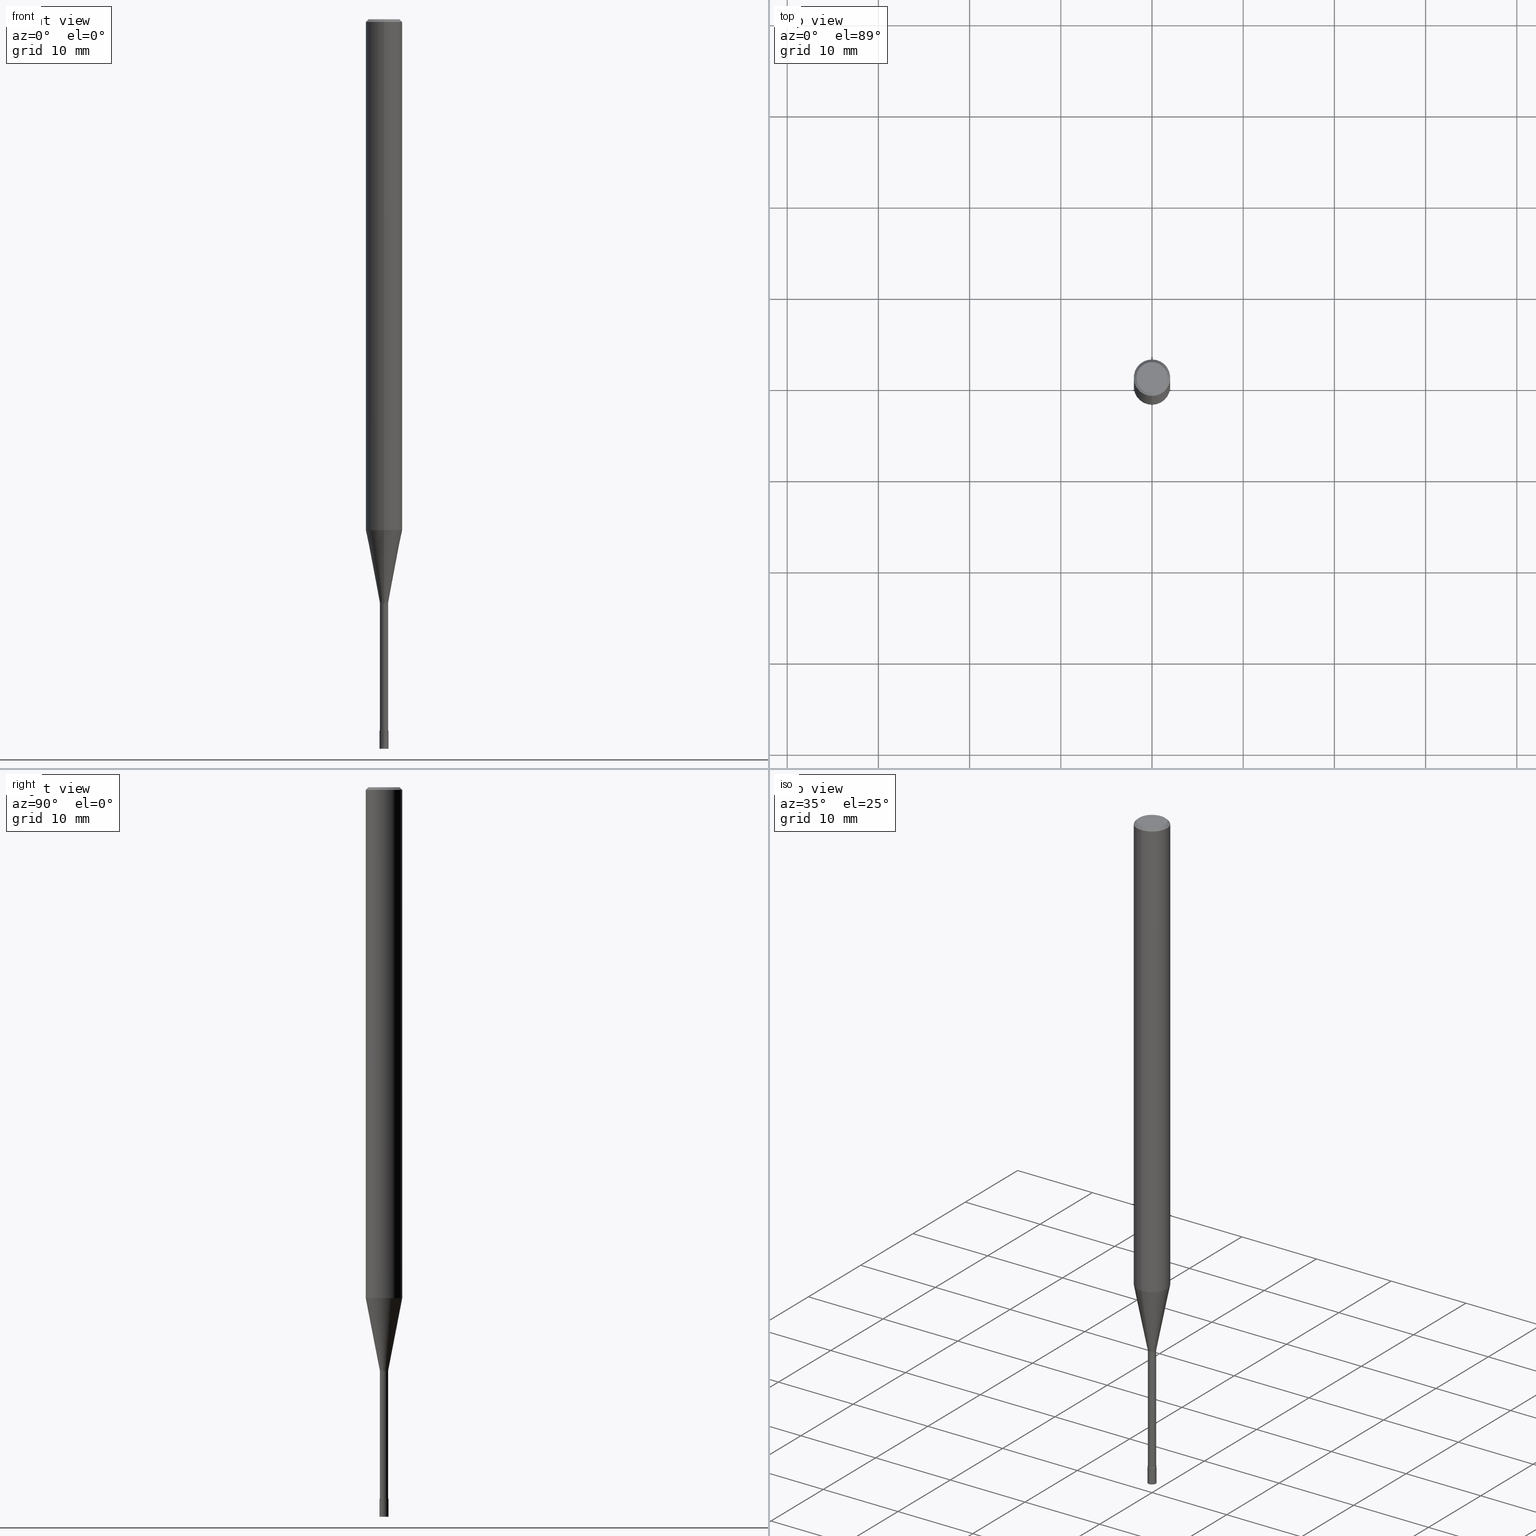
[diagram: canonical four-view strip — front | top / right | iso, engineering-drawing reading convention]
A machine part, canonical four-view strip (front | top / right | iso — engineering-drawing reading convention). The complete STEP part file that produces these views, byte-faithful:
ISO-10303-21;
HEADER;
FILE_DESCRIPTION(('no description'),'unknown implementation level');
FILE_NAME('CPRL2010-16-Huellk.stp','  ',('CIMSOURCE GmbH'),('CADClick - KiM GmbH - www.kimweb.de'),'unknown preprocess','ACIS','unknown authorization');
FILE_SCHEMA(('automotive_design'));
ENDSEC;
DATA;
#1=MECHANICAL_DESIGN_GEOMETRIC_PRESENTATION_REPRESENTATION(' ',(#14,#15,#16,#17,#18,#19,#20,#21,#22,#23,#24,#25,#26,#27,#28,#29,#30,#31,#32,#33,#34,#35,#36,#37,#38,#39,#40,#41,#42,#43,#44,#45,#46,#47,#48,#49,#50,#51,#52,#53,#54,#55,#56,#57,#58,#59,#60,#61,#62,#63,#64,#65,#66,#67,#68,#69,#70,#71,#72),#10);
#2=PRODUCT_DEFINITION_CONTEXT('',#73,'design');
#3=APPLICATION_PROTOCOL_DEFINITION('INTERNATIONAL STANDARD','automotive_design',1994,#73);
#4=PRODUCT_CATEGORY_RELATIONSHIP('NONE','NONE',#74,#75);
#5=SHAPE_DEFINITION_REPRESENTATION(#76,#77);
#6=PRODUCT_DEFINITION_CONTEXT('',#78,'design');
#7=APPLICATION_PROTOCOL_DEFINITION('INTERNATIONAL STANDARD','automotive_design',1994,#78);
#8=PRODUCT_CATEGORY_RELATIONSHIP('NONE','NONE',#79,#80);
#9=SHAPE_DEFINITION_REPRESENTATION(#81,#82);
#10= (GEOMETRIC_REPRESENTATION_CONTEXT(3)GLOBAL_UNCERTAINTY_ASSIGNED_CONTEXT((#85))GLOBAL_UNIT_ASSIGNED_CONTEXT((#87,#88,#89))REPRESENTATION_CONTEXT('NONE','WORKSPACE'));
#14=STYLED_ITEM('',(#91),#92);
#15=STYLED_ITEM('',(#93),#94);
#16=STYLED_ITEM('',(#95),#96);
#17=STYLED_ITEM('',(#97),#98);
#18=STYLED_ITEM('',(#99),#100);
#19=STYLED_ITEM('',(#101),#102);
#20=STYLED_ITEM('',(#103),#104);
#21=STYLED_ITEM('',(#105),#106);
#22=STYLED_ITEM('',(#107),#108);
#23=STYLED_ITEM('',(#109),#110);
#24=STYLED_ITEM('',(#111),#112);
#25=STYLED_ITEM('',(#113),#114);
#26=STYLED_ITEM('',(#115),#116);
#27=STYLED_ITEM('',(#117),#118);
#28=STYLED_ITEM('',(#119),#120);
#29=STYLED_ITEM('',(#121),#122);
#30=STYLED_ITEM('',(#123),#124);
#31=STYLED_ITEM('',(#125),#126);
#32=STYLED_ITEM('',(#127),#128);
#33=STYLED_ITEM('',(#129),#130);
#34=STYLED_ITEM('',(#131),#132);
#35=STYLED_ITEM('',(#133),#134);
#36=STYLED_ITEM('',(#135),#136);
#37=STYLED_ITEM('',(#137),#138);
#38=STYLED_ITEM('',(#139),#140);
#39=STYLED_ITEM('',(#141),#142);
#40=STYLED_ITEM('',(#143),#144);
#41=STYLED_ITEM('',(#145),#146);
#42=STYLED_ITEM('',(#147),#148);
#43=STYLED_ITEM('',(#149),#150);
#44=STYLED_ITEM('',(#151),#152);
#45=STYLED_ITEM('',(#153),#154);
#46=STYLED_ITEM('',(#155),#156);
#47=STYLED_ITEM('',(#157),#158);
#48=STYLED_ITEM('',(#159),#160);
#49=STYLED_ITEM('',(#161),#162);
#50=STYLED_ITEM('',(#163),#164);
#51=STYLED_ITEM('',(#165),#166);
#52=STYLED_ITEM('',(#167),#168);
#53=STYLED_ITEM('',(#169),#170);
#54=STYLED_ITEM('',(#171),#172);
#55=STYLED_ITEM('',(#173),#174);
#56=STYLED_ITEM('',(#175),#176);
#57=STYLED_ITEM('',(#177),#178);
#58=STYLED_ITEM('',(#179),#180);
#59=STYLED_ITEM('',(#181),#182);
#60=STYLED_ITEM('',(#183),#184);
#61=STYLED_ITEM('',(#185),#186);
#62=STYLED_ITEM('',(#187),#188);
#63=STYLED_ITEM('',(#189),#190);
#64=STYLED_ITEM('',(#191),#192);
#65=STYLED_ITEM('',(#193),#194);
#66=STYLED_ITEM('',(#195),#196);
#67=STYLED_ITEM('',(#197),#198);
#68=STYLED_ITEM('',(#199),#200);
#69=STYLED_ITEM('',(#201),#202);
#70=STYLED_ITEM('',(#203),#204);
#71=STYLED_ITEM('',(#205),#206);
#72=STYLED_ITEM('',(#207),#208);
#73=APPLICATION_CONTEXT(' ');
#74=PRODUCT_CATEGORY('part','NONE');
#75=PRODUCT_RELATED_PRODUCT_CATEGORY('detail',' ',(#209));
#76=PRODUCT_DEFINITION_SHAPE('NONE','NONE',#210);
#77=ADVANCED_BREP_SHAPE_REPRESENTATION('1',(#188,#211),#10);
#78=APPLICATION_CONTEXT(' ');
#79=PRODUCT_CATEGORY('part','NONE');
#80=PRODUCT_RELATED_PRODUCT_CATEGORY('detail',' ',(#212));
#81=PRODUCT_DEFINITION_SHAPE('NONE','NONE',#213);
#82=ADVANCED_BREP_SHAPE_REPRESENTATION('2',(#190,#214),#10);
#85=UNCERTAINTY_MEASURE_WITH_UNIT(LENGTH_MEASURE(1.0E-006),#87,'','');
#87= (CONVERSION_BASED_UNIT('MILLIMETRE',#217)LENGTH_UNIT()NAMED_UNIT(#220));
#88= (NAMED_UNIT(#222)PLANE_ANGLE_UNIT()SI_UNIT($,.RADIAN.));
#89= (NAMED_UNIT(#222)SOLID_ANGLE_UNIT()SI_UNIT($,.STERADIAN.));
#91=PRESENTATION_STYLE_ASSIGNMENT((#228));
#92=ADVANCED_FACE('',(#229),#230,.T.);
#93=PRESENTATION_STYLE_ASSIGNMENT((#231));
#94=ADVANCED_FACE('',(#232),#233,.T.);
#95=PRESENTATION_STYLE_ASSIGNMENT((#234));
#96=VERTEX_POINT('',#235);
#97=PRESENTATION_STYLE_ASSIGNMENT((#236));
#98=VERTEX_POINT('',#237);
#99=PRESENTATION_STYLE_ASSIGNMENT((#238));
#100=ADVANCED_FACE('',(#239),#240,.T.);
#101=PRESENTATION_STYLE_ASSIGNMENT((#241));
#102=EDGE_CURVE('',#134,#174,#242,.T.);
#103=PRESENTATION_STYLE_ASSIGNMENT((#243));
#104=EDGE_CURVE('',#198,#166,#244,.T.);
#105=PRESENTATION_STYLE_ASSIGNMENT((#245));
#106=EDGE_CURVE('',#130,#136,#246,.T.);
#107=PRESENTATION_STYLE_ASSIGNMENT((#247));
#108=EDGE_CURVE('',#136,#128,#248,.T.);
#109=PRESENTATION_STYLE_ASSIGNMENT((#249));
#110=EDGE_CURVE('',#96,#136,#250,.T.);
#111=PRESENTATION_STYLE_ASSIGNMENT((#251));
#112=VERTEX_POINT('',#252);
#113=PRESENTATION_STYLE_ASSIGNMENT((#253));
#114=EDGE_CURVE('',#174,#206,#254,.T.);
#115=PRESENTATION_STYLE_ASSIGNMENT((#255));
#116=ADVANCED_FACE('',(#256),#257,.T.);
#117=PRESENTATION_STYLE_ASSIGNMENT((#258));
#118=VERTEX_POINT('',#259);
#119=PRESENTATION_STYLE_ASSIGNMENT((#260));
#120=EDGE_CURVE('',#134,#178,#261,.T.);
#121=PRESENTATION_STYLE_ASSIGNMENT((#262));
#122=EDGE_CURVE('',#118,#134,#263,.T.);
#123=PRESENTATION_STYLE_ASSIGNMENT((#264));
#124=VERTEX_POINT('',#265);
#125=PRESENTATION_STYLE_ASSIGNMENT((#266));
#126=EDGE_CURVE('',#112,#198,#267,.T.);
#127=PRESENTATION_STYLE_ASSIGNMENT((#268));
#128=VERTEX_POINT('',#269);
#129=PRESENTATION_STYLE_ASSIGNMENT((#270));
#130=VERTEX_POINT('',#271);
#131=PRESENTATION_STYLE_ASSIGNMENT((#272));
#132=EDGE_CURVE('',#206,#174,#273,.T.);
#133=PRESENTATION_STYLE_ASSIGNMENT((#274));
#134=VERTEX_POINT('',#275);
#135=PRESENTATION_STYLE_ASSIGNMENT((#276));
#136=VERTEX_POINT('',#277);
#137=PRESENTATION_STYLE_ASSIGNMENT((#278));
#138=EDGE_CURVE('',#130,#98,#279,.T.);
#139=PRESENTATION_STYLE_ASSIGNMENT((#280));
#140=EDGE_CURVE('',#178,#134,#281,.T.);
#141=PRESENTATION_STYLE_ASSIGNMENT((#282));
#142=EDGE_CURVE('',#136,#96,#283,.T.);
#143=PRESENTATION_STYLE_ASSIGNMENT((#284));
#144=EDGE_CURVE('',#178,#124,#285,.T.);
#145=PRESENTATION_STYLE_ASSIGNMENT((#286));
#146=VERTEX_POINT('',#287);
#147=PRESENTATION_STYLE_ASSIGNMENT((#288));
#148=EDGE_CURVE('',#198,#112,#289,.T.);
#149=PRESENTATION_STYLE_ASSIGNMENT((#290));
#150=ADVANCED_FACE('',(#291),#292,.T.);
#151=PRESENTATION_STYLE_ASSIGNMENT((#293));
#152=EDGE_CURVE('',#146,#112,#294,.T.);
#153=PRESENTATION_STYLE_ASSIGNMENT((#295));
#154=ADVANCED_FACE('',(#296),#297,.T.);
#155=PRESENTATION_STYLE_ASSIGNMENT((#298));
#156=ADVANCED_FACE('',(#299),#300,.T.);
#157=PRESENTATION_STYLE_ASSIGNMENT((#301));
#158=ADVANCED_FACE('',(#302),#303,.T.);
#159=PRESENTATION_STYLE_ASSIGNMENT((#304));
#160=ADVANCED_FACE('',(#305),#306,.T.);
#161=PRESENTATION_STYLE_ASSIGNMENT((#307));
#162=ADVANCED_FACE('',(#308),#309,.T.);
#163=PRESENTATION_STYLE_ASSIGNMENT((#310));
#164=ADVANCED_FACE('',(#311),#312,.T.);
#165=PRESENTATION_STYLE_ASSIGNMENT((#313));
#166=VERTEX_POINT('',#314);
#167=PRESENTATION_STYLE_ASSIGNMENT((#315));
#168=EDGE_CURVE('',#98,#130,#316,.T.);
#169=PRESENTATION_STYLE_ASSIGNMENT((#317));
#170=EDGE_CURVE('',#206,#178,#318,.T.);
#171=PRESENTATION_STYLE_ASSIGNMENT((#319));
#172=VERTEX_POINT('',#320);
#173=PRESENTATION_STYLE_ASSIGNMENT((#321));
#174=VERTEX_POINT('',#322);
#175=PRESENTATION_STYLE_ASSIGNMENT((#323));
#176=EDGE_CURVE('',#166,#146,#324,.T.);
#177=PRESENTATION_STYLE_ASSIGNMENT((#325));
#178=VERTEX_POINT('',#326);
#179=PRESENTATION_STYLE_ASSIGNMENT((#327));
#180=ADVANCED_FACE('',(#328),#329,.T.);
#181=PRESENTATION_STYLE_ASSIGNMENT((#330));
#182=EDGE_CURVE('',#172,#128,#331,.T.);
#183=PRESENTATION_STYLE_ASSIGNMENT((#332));
#184=ADVANCED_FACE('',(#333,#334),#335,.T.);
#185=PRESENTATION_STYLE_ASSIGNMENT((#336));
#186=EDGE_CURVE('',#128,#172,#337,.T.);
#187=PRESENTATION_STYLE_ASSIGNMENT((#338));
#188=MANIFOLD_SOLID_BREP('1',#339);
#189=PRESENTATION_STYLE_ASSIGNMENT((#340));
#190=MANIFOLD_SOLID_BREP('2',#341);
#191=PRESENTATION_STYLE_ASSIGNMENT((#342));
#192=ADVANCED_FACE('',(#343),#344,.T.);
#193=PRESENTATION_STYLE_ASSIGNMENT((#345));
#194=EDGE_CURVE('',#172,#96,#346,.T.);
#195=PRESENTATION_STYLE_ASSIGNMENT((#347));
#196=ADVANCED_FACE('',(#348),#349,.T.);
#197=PRESENTATION_STYLE_ASSIGNMENT((#350));
#198=VERTEX_POINT('',#351);
#199=PRESENTATION_STYLE_ASSIGNMENT((#352));
#200=EDGE_CURVE('',#118,#124,#353,.T.);
#201=PRESENTATION_STYLE_ASSIGNMENT((#354));
#202=EDGE_CURVE('',#124,#118,#355,.T.);
#203=PRESENTATION_STYLE_ASSIGNMENT((#356));
#204=EDGE_CURVE('',#146,#166,#357,.T.);
#205=PRESENTATION_STYLE_ASSIGNMENT((#358));
#206=VERTEX_POINT('',#359);
#207=PRESENTATION_STYLE_ASSIGNMENT((#360));
#208=EDGE_CURVE('',#96,#98,#361,.T.);
#209=PRODUCT('1','1','PART-1-DESC',(#362));
#210=PRODUCT_DEFINITION('NONE','NONE',#363,#2);
#211=AXIS2_PLACEMENT_3D('',#364,#365,#366);
#212=PRODUCT('2','2','PART-2-DESC',(#367));
#213=PRODUCT_DEFINITION('NONE','NONE',#368,#6);
#214=AXIS2_PLACEMENT_3D('',#369,#370,#371);
#217=LENGTH_MEASURE_WITH_UNIT(LENGTH_MEASURE(1.0),#372);
#220=DIMENSIONAL_EXPONENTS(1.0,0.0,0.0,0.0,0.0,0.0,0.0);
#222=DIMENSIONAL_EXPONENTS(0.0,0.0,0.0,0.0,0.0,0.0,0.0);
#228=SURFACE_STYLE_USAGE(.BOTH.,#373);
#229=FACE_OUTER_BOUND('',#374,.T.);
#230=PLANE('',#375);
#231=SURFACE_STYLE_USAGE(.BOTH.,#376);
#232=FACE_OUTER_BOUND('',#377,.T.);
#233=CONICAL_SURFACE('',#378,0.49995,4.99999999583278E-005);
#234=POINT_STYLE(' ',#379,POSITIVE_LENGTH_MEASURE(1.0E-006),#380);
#235=CARTESIAN_POINT('',(2.44921270764475E-016,-2.0,-0.299999999999997));
#236=POINT_STYLE(' ',#381,POSITIVE_LENGTH_MEASURE(1.0E-006),#382);
#237=CARTESIAN_POINT('',(2.08183080149804E-016,-1.7,0.0));
#238=SURFACE_STYLE_USAGE(.BOTH.,#383);
#239=FACE_OUTER_BOUND('',#384,.T.);
#240=CONICAL_SURFACE('',#385,1.22495,0.191987597119561);
#241=CURVE_STYLE('',#386,POSITIVE_LENGTH_MEASURE(1.0E-006),#387);
#242=LINE('',#388,#389);
#243=CURVE_STYLE('',#390,POSITIVE_LENGTH_MEASURE(1.0E-006),#391);
#244=LINE('',#392,#393);
#245=CURVE_STYLE('',#394,POSITIVE_LENGTH_MEASURE(1.0E-006),#395);
#246=LINE('',#396,#397);
#247=CURVE_STYLE('',#398,POSITIVE_LENGTH_MEASURE(1.0E-006),#399);
#248=LINE('',#400,#401);
#249=CURVE_STYLE('',#402,POSITIVE_LENGTH_MEASURE(1.0E-006),#403);
#250=CIRCLE('',#404,2.0);
#251=POINT_STYLE(' ',#405,POSITIVE_LENGTH_MEASURE(1.0E-006),#406);
#252=CARTESIAN_POINT('',(0.0,0.5,-80.0));
#253=CURVE_STYLE('',#407,POSITIVE_LENGTH_MEASURE(1.0E-006),#408);
#254=CIRCLE('',#409,1.99995);
#255=SURFACE_STYLE_USAGE(.BOTH.,#410);
#256=FACE_OUTER_BOUND('',#411,.T.);
#257=CYLINDRICAL_SURFACE('',#412,0.44995);
#258=POINT_STYLE(' ',#413,POSITIVE_LENGTH_MEASURE(1.0E-006),#414);
#259=CARTESIAN_POINT('',(5.51011628902379E-017,-0.44995,-78.0));
#260=CURVE_STYLE('',#415,POSITIVE_LENGTH_MEASURE(1.0E-006),#416);
#261=CIRCLE('',#417,0.44995);
#262=CURVE_STYLE('',#418,POSITIVE_LENGTH_MEASURE(1.0E-006),#419);
#263=LINE('',#420,#421);
#264=POINT_STYLE(' ',#422,POSITIVE_LENGTH_MEASURE(1.0E-006),#423);
#265=CARTESIAN_POINT('',(0.0,0.44995,-78.0));
#266=CURVE_STYLE('',#424,POSITIVE_LENGTH_MEASURE(1.0E-006),#425);
#267=CIRCLE('',#426,0.5);
#268=POINT_STYLE(' ',#427,POSITIVE_LENGTH_MEASURE(1.0E-006),#428);
#269=CARTESIAN_POINT('',(0.0,2.0,-56.026));
#270=POINT_STYLE(' ',#429,POSITIVE_LENGTH_MEASURE(1.0E-006),#430);
#271=CARTESIAN_POINT('',(0.0,1.7,0.0));
#272=CURVE_STYLE('',#431,POSITIVE_LENGTH_MEASURE(1.0E-006),#432);
#273=CIRCLE('',#433,1.99995);
#274=POINT_STYLE(' ',#434,POSITIVE_LENGTH_MEASURE(1.0E-006),#435);
#275=CARTESIAN_POINT('',(5.51011628902379E-017,-0.44995,-64.0));
#276=POINT_STYLE(' ',#436,POSITIVE_LENGTH_MEASURE(1.0E-006),#437);
#277=CARTESIAN_POINT('',(0.0,2.0,-0.299999999999997));
#278=CURVE_STYLE('',#438,POSITIVE_LENGTH_MEASURE(1.0E-006),#439);
#279=CIRCLE('',#440,1.7);
#280=CURVE_STYLE('',#441,POSITIVE_LENGTH_MEASURE(1.0E-006),#442);
#281=CIRCLE('',#443,0.44995);
#282=CURVE_STYLE('',#444,POSITIVE_LENGTH_MEASURE(1.0E-006),#445);
#283=CIRCLE('',#446,2.0);
#284=CURVE_STYLE('',#447,POSITIVE_LENGTH_MEASURE(1.0E-006),#448);
#285=LINE('',#449,#450);
#286=POINT_STYLE(' ',#451,POSITIVE_LENGTH_MEASURE(1.0E-006),#452);
#287=CARTESIAN_POINT('',(0.0,0.4999,-78.0));
#288=CURVE_STYLE('',#453,POSITIVE_LENGTH_MEASURE(1.0E-006),#454);
#289=CIRCLE('',#455,0.5);
#290=SURFACE_STYLE_USAGE(.BOTH.,#456);
#291=FACE_OUTER_BOUND('',#457,.T.);
#292=CONICAL_SURFACE('',#458,1.85,0.785398163397453);
#293=CURVE_STYLE('',#459,POSITIVE_LENGTH_MEASURE(1.0E-006),#460);
#294=LINE('',#461,#462);
#295=SURFACE_STYLE_USAGE(.BOTH.,#463);
#296=FACE_OUTER_BOUND('',#464,.T.);
#297=PLANE('',#465);
#298=SURFACE_STYLE_USAGE(.BOTH.,#466);
#299=FACE_OUTER_BOUND('',#467,.T.);
#300=PLANE('',#468);
#301=SURFACE_STYLE_USAGE(.BOTH.,#469);
#302=FACE_OUTER_BOUND('',#470,.T.);
#303=CYLINDRICAL_SURFACE('',#471,2.0);
#304=SURFACE_STYLE_USAGE(.BOTH.,#472);
#305=FACE_OUTER_BOUND('',#473,.T.);
#306=PLANE('',#474);
#307=SURFACE_STYLE_USAGE(.BOTH.,#475);
#308=FACE_OUTER_BOUND('',#476,.T.);
#309=CONICAL_SURFACE('',#477,0.49995,4.99999999583278E-005);
#310=SURFACE_STYLE_USAGE(.BOTH.,#478);
#311=FACE_OUTER_BOUND('',#479,.T.);
#312=CONICAL_SURFACE('',#480,1.22495,0.191987597119561);
#313=POINT_STYLE(' ',#481,POSITIVE_LENGTH_MEASURE(1.0E-006),#482);
#314=CARTESIAN_POINT('',(6.12180716275807E-017,-0.4999,-78.0));
#315=CURVE_STYLE('',#483,POSITIVE_LENGTH_MEASURE(1.0E-006),#484);
#316=CIRCLE('',#485,1.7);
#317=CURVE_STYLE('',#486,POSITIVE_LENGTH_MEASURE(1.0E-006),#487);
#318=LINE('',#488,#489);
#319=POINT_STYLE(' ',#490,POSITIVE_LENGTH_MEASURE(1.0E-006),#491);
#320=CARTESIAN_POINT('',(2.44921270764475E-016,-2.0,-56.026));
#321=POINT_STYLE(' ',#492,POSITIVE_LENGTH_MEASURE(1.0E-006),#493);
#322=CARTESIAN_POINT('',(2.44915147732706E-016,-1.99995,-56.026));
#323=CURVE_STYLE('',#494,POSITIVE_LENGTH_MEASURE(1.0E-006),#495);
#324=CIRCLE('',#496,0.4999);
#325=POINT_STYLE(' ',#497,POSITIVE_LENGTH_MEASURE(1.0E-006),#498);
#326=CARTESIAN_POINT('',(0.0,0.44995,-64.0));
#327=SURFACE_STYLE_USAGE(.BOTH.,#499);
#328=FACE_OUTER_BOUND('',#500,.T.);
#329=CYLINDRICAL_SURFACE('',#501,0.44995);
#330=CURVE_STYLE('',#502,POSITIVE_LENGTH_MEASURE(1.0E-006),#503);
#331=CIRCLE('',#504,2.0);
#332=SURFACE_STYLE_USAGE(.BOTH.,#505);
#333=FACE_OUTER_BOUND('',#506,.T.);
#334=FACE_BOUND('',#507,.T.);
#335=PLANE('',#508);
#336=CURVE_STYLE('',#509,POSITIVE_LENGTH_MEASURE(1.0E-006),#510);
#337=CIRCLE('',#511,2.0);
#338=SURFACE_STYLE_USAGE(.BOTH.,#512);
#339=CLOSED_SHELL('',(#180,#164,#158,#150,#184,#92,#192,#196,#100,#116,#156));
#340=SURFACE_STYLE_USAGE(.BOTH.,#513);
#341=CLOSED_SHELL('',(#162,#154,#94,#160));
#342=SURFACE_STYLE_USAGE(.BOTH.,#514);
#343=FACE_OUTER_BOUND('',#515,.T.);
#344=CONICAL_SURFACE('',#516,1.85,0.785398163397453);
#345=CURVE_STYLE('',#517,POSITIVE_LENGTH_MEASURE(1.0E-006),#518);
#346=LINE('',#519,#520);
#347=SURFACE_STYLE_USAGE(.BOTH.,#521);
#348=FACE_OUTER_BOUND('',#522,.T.);
#349=CYLINDRICAL_SURFACE('',#523,2.0);
#350=POINT_STYLE(' ',#524,POSITIVE_LENGTH_MEASURE(1.0E-006),#525);
#351=CARTESIAN_POINT('',(6.12303176911189E-017,-0.5,-80.0));
#352=CURVE_STYLE('',#526,POSITIVE_LENGTH_MEASURE(1.0E-006),#527);
#353=CIRCLE('',#528,0.44995);
#354=CURVE_STYLE('',#529,POSITIVE_LENGTH_MEASURE(1.0E-006),#530);
#355=CIRCLE('',#531,0.44995);
#356=CURVE_STYLE('',#532,POSITIVE_LENGTH_MEASURE(1.0E-006),#533);
#357=CIRCLE('',#534,0.4999);
#358=POINT_STYLE(' ',#535,POSITIVE_LENGTH_MEASURE(1.0E-006),#536);
#359=CARTESIAN_POINT('',(0.0,1.99995,-56.026));
#360=CURVE_STYLE('',#537,POSITIVE_LENGTH_MEASURE(1.0E-006),#538);
#361=LINE('',#539,#540);
#362=PRODUCT_CONTEXT('',#73,'mechanical');
#363=PRODUCT_DEFINITION_FORMATION_WITH_SPECIFIED_SOURCE(' ','NONE',#209,.NOT_KNOWN.);
#364=CARTESIAN_POINT('',(0.0,0.0,0.0));
#365=DIRECTION('',(0.0,0.0,1.0));
#366=DIRECTION('',(1.0,0.0,0.0));
#367=PRODUCT_CONTEXT('',#78,'mechanical');
#368=PRODUCT_DEFINITION_FORMATION_WITH_SPECIFIED_SOURCE(' ','NONE',#212,.NOT_KNOWN.);
#369=CARTESIAN_POINT('',(0.0,0.0,0.0));
#370=DIRECTION('',(0.0,0.0,1.0));
#371=DIRECTION('',(1.0,0.0,0.0));
#372= (NAMED_UNIT(#220)LENGTH_UNIT()SI_UNIT(.MILLI.,.METRE.));
#373=SURFACE_SIDE_STYLE('',(#542));
#374=EDGE_LOOP('',(#543,#544));
#375=AXIS2_PLACEMENT_3D('',#545,#546,#547);
#376=SURFACE_SIDE_STYLE('',(#548));
#377=EDGE_LOOP('',(#549,#550,#551,#552));
#378=AXIS2_PLACEMENT_3D('',#553,#554,#555);
#379=PRE_DEFINED_MARKER('');
#380=COLOUR_RGB('',0.498039215803146,0.498039215803146,0.498039215803146);
#381=PRE_DEFINED_MARKER('');
#382=COLOUR_RGB('',0.498039215803146,0.498039215803146,0.498039215803146);
#383=SURFACE_SIDE_STYLE('',(#556));
#384=EDGE_LOOP('',(#557,#558,#559,#560));
#385=AXIS2_PLACEMENT_3D('',#561,#562,#563);
#386=DRAUGHTING_PRE_DEFINED_CURVE_FONT('continuous');
#387=COLOUR_RGB('',0.498039215803146,0.498039215803146,0.498039215803146);
#388=CARTESIAN_POINT('',(1.50008155311472E-016,-1.22495,-60.013));
#389=VECTOR('',#564,1.0);
#390=DRAUGHTING_PRE_DEFINED_CURVE_FONT('continuous');
#391=COLOUR_RGB('',0.800000011920929,0.800000011920929,0.800000011920929);
#392=CARTESIAN_POINT('',(6.12241946593498E-017,-0.49995,-79.0));
#393=VECTOR('',#565,1.0);
#394=DRAUGHTING_PRE_DEFINED_CURVE_FONT('continuous');
#395=COLOUR_RGB('',0.498039215803146,0.498039215803146,0.498039215803146);
#396=CARTESIAN_POINT('',(-2.2655217545714E-016,1.85,-0.149999999999999));
#397=VECTOR('',#566,1.0);
#398=DRAUGHTING_PRE_DEFINED_CURVE_FONT('continuous');
#399=COLOUR_RGB('',0.498039215803146,0.498039215803146,0.498039215803146);
#400=CARTESIAN_POINT('',(-2.44921270764475E-016,2.0,-28.163));
#401=VECTOR('',#567,1.0);
#402=DRAUGHTING_PRE_DEFINED_CURVE_FONT('continuous');
#403=COLOUR_RGB('',0.498039215803146,0.498039215803146,0.498039215803146);
#404=AXIS2_PLACEMENT_3D('',#568,#569,#570);
#405=PRE_DEFINED_MARKER('');
#406=COLOUR_RGB('',0.800000011920929,0.800000011920929,0.800000011920929);
#407=DRAUGHTING_PRE_DEFINED_CURVE_FONT('continuous');
#408=COLOUR_RGB('',0.498039215803146,0.498039215803146,0.498039215803146);
#409=AXIS2_PLACEMENT_3D('',#571,#572,#573);
#410=SURFACE_SIDE_STYLE('',(#574));
#411=EDGE_LOOP('',(#575,#576,#577,#578));
#412=AXIS2_PLACEMENT_3D('',#579,#580,#581);
#413=PRE_DEFINED_MARKER('');
#414=COLOUR_RGB('',0.498039215803146,0.498039215803146,0.498039215803146);
#415=DRAUGHTING_PRE_DEFINED_CURVE_FONT('continuous');
#416=COLOUR_RGB('',0.498039215803146,0.498039215803146,0.498039215803146);
#417=AXIS2_PLACEMENT_3D('',#582,#583,#584);
#418=DRAUGHTING_PRE_DEFINED_CURVE_FONT('continuous');
#419=COLOUR_RGB('',0.498039215803146,0.498039215803146,0.498039215803146);
#420=CARTESIAN_POINT('',(5.51011628902379E-017,-0.44995,-71.0));
#421=VECTOR('',#585,1.0);
#422=PRE_DEFINED_MARKER('');
#423=COLOUR_RGB('',0.498039215803146,0.498039215803146,0.498039215803146);
#424=DRAUGHTING_PRE_DEFINED_CURVE_FONT('continuous');
#425=COLOUR_RGB('',0.800000011920929,0.800000011920929,0.800000011920929);
#426=AXIS2_PLACEMENT_3D('',#586,#587,#588);
#427=PRE_DEFINED_MARKER('');
#428=COLOUR_RGB('',0.498039215803146,0.498039215803146,0.498039215803146);
#429=PRE_DEFINED_MARKER('');
#430=COLOUR_RGB('',0.498039215803146,0.498039215803146,0.498039215803146);
#431=DRAUGHTING_PRE_DEFINED_CURVE_FONT('continuous');
#432=COLOUR_RGB('',0.498039215803146,0.498039215803146,0.498039215803146);
#433=AXIS2_PLACEMENT_3D('',#589,#590,#591);
#434=PRE_DEFINED_MARKER('');
#435=COLOUR_RGB('',0.498039215803146,0.498039215803146,0.498039215803146);
#436=PRE_DEFINED_MARKER('');
#437=COLOUR_RGB('',0.498039215803146,0.498039215803146,0.498039215803146);
#438=DRAUGHTING_PRE_DEFINED_CURVE_FONT('continuous');
#439=COLOUR_RGB('',0.498039215803146,0.498039215803146,0.498039215803146);
#440=AXIS2_PLACEMENT_3D('',#592,#593,#594);
#441=DRAUGHTING_PRE_DEFINED_CURVE_FONT('continuous');
#442=COLOUR_RGB('',0.498039215803146,0.498039215803146,0.498039215803146);
#443=AXIS2_PLACEMENT_3D('',#595,#596,#597);
#444=DRAUGHTING_PRE_DEFINED_CURVE_FONT('continuous');
#445=COLOUR_RGB('',0.498039215803146,0.498039215803146,0.498039215803146);
#446=AXIS2_PLACEMENT_3D('',#598,#599,#600);
#447=DRAUGHTING_PRE_DEFINED_CURVE_FONT('continuous');
#448=COLOUR_RGB('',0.498039215803146,0.498039215803146,0.498039215803146);
#449=CARTESIAN_POINT('',(-5.51011628902379E-017,0.44995,-71.0));
#450=VECTOR('',#601,1.0);
#451=PRE_DEFINED_MARKER('');
#452=COLOUR_RGB('',0.800000011920929,0.800000011920929,0.800000011920929);
#453=DRAUGHTING_PRE_DEFINED_CURVE_FONT('continuous');
#454=COLOUR_RGB('',0.800000011920929,0.800000011920929,0.800000011920929);
#455=AXIS2_PLACEMENT_3D('',#602,#603,#604);
#456=SURFACE_SIDE_STYLE('',(#605));
#457=EDGE_LOOP('',(#606,#607,#608,#609));
#458=AXIS2_PLACEMENT_3D('',#610,#611,#612);
#459=DRAUGHTING_PRE_DEFINED_CURVE_FONT('continuous');
#460=COLOUR_RGB('',0.800000011920929,0.800000011920929,0.800000011920929);
#461=CARTESIAN_POINT('',(-6.12241946593498E-017,0.49995,-79.0));
#462=VECTOR('',#613,1.0);
#463=SURFACE_SIDE_STYLE('',(#614));
#464=EDGE_LOOP('',(#615,#616));
#465=AXIS2_PLACEMENT_3D('',#617,#618,#619);
#466=SURFACE_SIDE_STYLE('',(#620));
#467=EDGE_LOOP('',(#621,#622));
#468=AXIS2_PLACEMENT_3D('',#623,#624,#625);
#469=SURFACE_SIDE_STYLE('',(#626));
#470=EDGE_LOOP('',(#627,#628,#629,#630));
#471=AXIS2_PLACEMENT_3D('',#631,#632,#633);
#472=SURFACE_SIDE_STYLE('',(#634));
#473=EDGE_LOOP('',(#635,#636));
#474=AXIS2_PLACEMENT_3D('',#637,#638,#639);
#475=SURFACE_SIDE_STYLE('',(#640));
#476=EDGE_LOOP('',(#641,#642,#643,#644));
#477=AXIS2_PLACEMENT_3D('',#645,#646,#647);
#478=SURFACE_SIDE_STYLE('',(#648));
#479=EDGE_LOOP('',(#649,#650,#651,#652));
#480=AXIS2_PLACEMENT_3D('',#653,#654,#655);
#481=PRE_DEFINED_MARKER('');
#482=COLOUR_RGB('',0.800000011920929,0.800000011920929,0.800000011920929);
#483=DRAUGHTING_PRE_DEFINED_CURVE_FONT('continuous');
#484=COLOUR_RGB('',0.498039215803146,0.498039215803146,0.498039215803146);
#485=AXIS2_PLACEMENT_3D('',#656,#657,#658);
#486=DRAUGHTING_PRE_DEFINED_CURVE_FONT('continuous');
#487=COLOUR_RGB('',0.498039215803146,0.498039215803146,0.498039215803146);
#488=CARTESIAN_POINT('',(-1.50008155311472E-016,1.22495,-60.013));
#489=VECTOR('',#659,1.0);
#490=PRE_DEFINED_MARKER('');
#491=COLOUR_RGB('',0.498039215803146,0.498039215803146,0.498039215803146);
#492=PRE_DEFINED_MARKER('');
#493=COLOUR_RGB('',0.498039215803146,0.498039215803146,0.498039215803146);
#494=DRAUGHTING_PRE_DEFINED_CURVE_FONT('continuous');
#495=COLOUR_RGB('',0.800000011920929,0.800000011920929,0.800000011920929);
#496=AXIS2_PLACEMENT_3D('',#660,#661,#662);
#497=PRE_DEFINED_MARKER('');
#498=COLOUR_RGB('',0.498039215803146,0.498039215803146,0.498039215803146);
#499=SURFACE_SIDE_STYLE('',(#663));
#500=EDGE_LOOP('',(#664,#665,#666,#667));
#501=AXIS2_PLACEMENT_3D('',#668,#669,#670);
#502=DRAUGHTING_PRE_DEFINED_CURVE_FONT('continuous');
#503=COLOUR_RGB('',0.498039215803146,0.498039215803146,0.498039215803146);
#504=AXIS2_PLACEMENT_3D('',#671,#672,#673);
#505=SURFACE_SIDE_STYLE('',(#674));
#506=EDGE_LOOP('',(#675,#676));
#507=EDGE_LOOP('',(#677,#678));
#508=AXIS2_PLACEMENT_3D('',#679,#680,#681);
#509=DRAUGHTING_PRE_DEFINED_CURVE_FONT('continuous');
#510=COLOUR_RGB('',0.498039215803146,0.498039215803146,0.498039215803146);
#511=AXIS2_PLACEMENT_3D('',#682,#683,#684);
#512=SURFACE_SIDE_STYLE('',(#685));
#513=SURFACE_SIDE_STYLE('',(#686));
#514=SURFACE_SIDE_STYLE('',(#687));
#515=EDGE_LOOP('',(#688,#689,#690,#691));
#516=AXIS2_PLACEMENT_3D('',#692,#693,#694);
#517=DRAUGHTING_PRE_DEFINED_CURVE_FONT('continuous');
#518=COLOUR_RGB('',0.498039215803146,0.498039215803146,0.498039215803146);
#519=CARTESIAN_POINT('',(2.44921270764475E-016,-2.0,-28.163));
#520=VECTOR('',#695,1.0);
#521=SURFACE_SIDE_STYLE('',(#696));
#522=EDGE_LOOP('',(#697,#698,#699,#700));
#523=AXIS2_PLACEMENT_3D('',#701,#702,#703);
#524=PRE_DEFINED_MARKER('');
#525=COLOUR_RGB('',0.800000011920929,0.800000011920929,0.800000011920929);
#526=DRAUGHTING_PRE_DEFINED_CURVE_FONT('continuous');
#527=COLOUR_RGB('',0.498039215803146,0.498039215803146,0.498039215803146);
#528=AXIS2_PLACEMENT_3D('',#704,#705,#706);
#529=DRAUGHTING_PRE_DEFINED_CURVE_FONT('continuous');
#530=COLOUR_RGB('',0.498039215803146,0.498039215803146,0.498039215803146);
#531=AXIS2_PLACEMENT_3D('',#707,#708,#709);
#532=DRAUGHTING_PRE_DEFINED_CURVE_FONT('continuous');
#533=COLOUR_RGB('',0.800000011920929,0.800000011920929,0.800000011920929);
#534=AXIS2_PLACEMENT_3D('',#710,#711,#712);
#535=PRE_DEFINED_MARKER('');
#536=COLOUR_RGB('',0.498039215803146,0.498039215803146,0.498039215803146);
#537=DRAUGHTING_PRE_DEFINED_CURVE_FONT('continuous');
#538=COLOUR_RGB('',0.498039215803146,0.498039215803146,0.498039215803146);
#539=CARTESIAN_POINT('',(2.2655217545714E-016,-1.85,-0.149999999999999));
#540=VECTOR('',#713,1.0);
#542=SURFACE_STYLE_FILL_AREA(#714);
#543=ORIENTED_EDGE('',*,*,#138,.F.);
#544=ORIENTED_EDGE('',*,*,#168,.F.);
#545=CARTESIAN_POINT('',(0.0,0.85,0.0));
#546=DIRECTION('',(-0.0,0.0,1.0));
#547=DIRECTION('',(0.0,-1.0,0.0));
#548=SURFACE_STYLE_FILL_AREA(#715);
#549=ORIENTED_EDGE('',*,*,#152,.T.);
#550=ORIENTED_EDGE('',*,*,#148,.F.);
#551=ORIENTED_EDGE('',*,*,#104,.T.);
#552=ORIENTED_EDGE('',*,*,#176,.T.);
#553=CARTESIAN_POINT('',(0.0,0.0,-79.0));
#554=DIRECTION('',(0.0,-0.0,-1.0));
#555=DIRECTION('',(0.0,1.0,0.0));
#556=SURFACE_STYLE_FILL_AREA(#716);
#557=ORIENTED_EDGE('',*,*,#170,.T.);
#558=ORIENTED_EDGE('',*,*,#120,.F.);
#559=ORIENTED_EDGE('',*,*,#102,.T.);
#560=ORIENTED_EDGE('',*,*,#114,.T.);
#561=CARTESIAN_POINT('',(0.0,0.0,-60.013));
#562=DIRECTION('',(-0.0,-0.0,1.0));
#563=DIRECTION('',(0.0,1.0,0.0));
#564=DIRECTION('',(2.33667566290819E-017,-0.190810349433081,0.981626920244767));
#565=DIRECTION('',(-6.12303176145742E-021,4.99999999374945E-005,0.99999999875));
#566=DIRECTION('',(-8.6592745707194E-017,0.707106781186551,-0.707106781186544));
#567=DIRECTION('',(0.0,0.0,-1.0));
#568=CARTESIAN_POINT('',(0.0,0.0,-0.299999999999997));
#569=DIRECTION('',(0.0,0.0,-1.0));
#570=DIRECTION('',(0.0,1.0,0.0));
#571=CARTESIAN_POINT('',(0.0,0.0,-56.026));
#572=DIRECTION('',(0.0,0.0,-1.0));
#573=DIRECTION('',(0.0,1.0,0.0));
#574=SURFACE_STYLE_FILL_AREA(#717);
#575=ORIENTED_EDGE('',*,*,#144,.T.);
#576=ORIENTED_EDGE('',*,*,#200,.F.);
#577=ORIENTED_EDGE('',*,*,#122,.T.);
#578=ORIENTED_EDGE('',*,*,#120,.T.);
#579=CARTESIAN_POINT('',(0.0,0.0,-71.0));
#580=DIRECTION('',(-0.0,-0.0,1.0));
#581=DIRECTION('',(0.0,1.0,0.0));
#582=CARTESIAN_POINT('',(0.0,0.0,-64.0));
#583=DIRECTION('',(0.0,0.0,-1.0));
#584=DIRECTION('',(0.0,1.0,0.0));
#585=DIRECTION('',(-0.0,-0.0,1.0));
#586=CARTESIAN_POINT('',(0.0,0.0,-80.0));
#587=DIRECTION('',(0.0,0.0,-1.0));
#588=DIRECTION('',(0.0,1.0,0.0));
#589=CARTESIAN_POINT('',(0.0,0.0,-56.026));
#590=DIRECTION('',(0.0,0.0,-1.0));
#591=DIRECTION('',(0.0,1.0,0.0));
#592=CARTESIAN_POINT('',(0.0,0.0,0.0));
#593=DIRECTION('',(0.0,0.0,-1.0));
#594=DIRECTION('',(0.0,1.0,0.0));
#595=CARTESIAN_POINT('',(0.0,0.0,-64.0));
#596=DIRECTION('',(0.0,0.0,-1.0));
#597=DIRECTION('',(0.0,1.0,0.0));
#598=CARTESIAN_POINT('',(0.0,0.0,-0.299999999999997));
#599=DIRECTION('',(0.0,0.0,-1.0));
#600=DIRECTION('',(0.0,1.0,0.0));
#601=DIRECTION('',(0.0,0.0,-1.0));
#602=CARTESIAN_POINT('',(0.0,0.0,-80.0));
#603=DIRECTION('',(0.0,0.0,-1.0));
#604=DIRECTION('',(0.0,1.0,0.0));
#605=SURFACE_STYLE_FILL_AREA(#718);
#606=ORIENTED_EDGE('',*,*,#106,.F.);
#607=ORIENTED_EDGE('',*,*,#138,.T.);
#608=ORIENTED_EDGE('',*,*,#208,.F.);
#609=ORIENTED_EDGE('',*,*,#142,.F.);
#610=CARTESIAN_POINT('',(0.0,0.0,-0.149999999999999));
#611=DIRECTION('',(0.0,-0.0,-1.0));
#612=DIRECTION('',(0.0,1.0,0.0));
#613=DIRECTION('',(-6.12303176145742E-021,4.99999999374945E-005,-0.99999999875));
#614=SURFACE_STYLE_FILL_AREA(#719);
#615=ORIENTED_EDGE('',*,*,#204,.F.);
#616=ORIENTED_EDGE('',*,*,#176,.F.);
#617=CARTESIAN_POINT('',(0.0,0.24995,-78.0));
#618=DIRECTION('',(-0.0,0.0,1.0));
#619=DIRECTION('',(0.0,-1.0,0.0));
#620=SURFACE_STYLE_FILL_AREA(#720);
#621=ORIENTED_EDGE('',*,*,#202,.T.);
#622=ORIENTED_EDGE('',*,*,#200,.T.);
#623=CARTESIAN_POINT('',(0.0,0.224975,-78.0));
#624=DIRECTION('',(0.0,0.0,-1.0));
#625=DIRECTION('',(0.0,1.0,0.0));
#626=SURFACE_STYLE_FILL_AREA(#721);
#627=ORIENTED_EDGE('',*,*,#108,.F.);
#628=ORIENTED_EDGE('',*,*,#142,.T.);
#629=ORIENTED_EDGE('',*,*,#194,.F.);
#630=ORIENTED_EDGE('',*,*,#186,.F.);
#631=CARTESIAN_POINT('',(0.0,0.0,-28.163));
#632=DIRECTION('',(-0.0,-0.0,1.0));
#633=DIRECTION('',(0.0,1.0,0.0));
#634=SURFACE_STYLE_FILL_AREA(#722);
#635=ORIENTED_EDGE('',*,*,#126,.T.);
#636=ORIENTED_EDGE('',*,*,#148,.T.);
#637=CARTESIAN_POINT('',(0.0,0.2475,-80.0));
#638=DIRECTION('',(0.0,0.0,-1.0));
#639=DIRECTION('',(0.0,1.0,0.0));
#640=SURFACE_STYLE_FILL_AREA(#723);
#641=ORIENTED_EDGE('',*,*,#152,.F.);
#642=ORIENTED_EDGE('',*,*,#204,.T.);
#643=ORIENTED_EDGE('',*,*,#104,.F.);
#644=ORIENTED_EDGE('',*,*,#126,.F.);
#645=CARTESIAN_POINT('',(0.0,0.0,-79.0));
#646=DIRECTION('',(0.0,-0.0,-1.0));
#647=DIRECTION('',(0.0,1.0,0.0));
#648=SURFACE_STYLE_FILL_AREA(#724);
#649=ORIENTED_EDGE('',*,*,#170,.F.);
#650=ORIENTED_EDGE('',*,*,#132,.T.);
#651=ORIENTED_EDGE('',*,*,#102,.F.);
#652=ORIENTED_EDGE('',*,*,#140,.F.);
#653=CARTESIAN_POINT('',(0.0,0.0,-60.013));
#654=DIRECTION('',(-0.0,-0.0,1.0));
#655=DIRECTION('',(0.0,1.0,0.0));
#656=CARTESIAN_POINT('',(0.0,0.0,0.0));
#657=DIRECTION('',(0.0,0.0,-1.0));
#658=DIRECTION('',(0.0,1.0,0.0));
#659=DIRECTION('',(2.33667566290819E-017,-0.190810349433081,-0.981626920244767));
#660=CARTESIAN_POINT('',(0.0,0.0,-78.0));
#661=DIRECTION('',(0.0,0.0,-1.0));
#662=DIRECTION('',(0.0,1.0,0.0));
#663=SURFACE_STYLE_FILL_AREA(#725);
#664=ORIENTED_EDGE('',*,*,#144,.F.);
#665=ORIENTED_EDGE('',*,*,#140,.T.);
#666=ORIENTED_EDGE('',*,*,#122,.F.);
#667=ORIENTED_EDGE('',*,*,#202,.F.);
#668=CARTESIAN_POINT('',(0.0,0.0,-71.0));
#669=DIRECTION('',(-0.0,-0.0,1.0));
#670=DIRECTION('',(0.0,1.0,0.0));
#671=CARTESIAN_POINT('',(0.0,0.0,-56.026));
#672=DIRECTION('',(0.0,0.0,-1.0));
#673=DIRECTION('',(0.0,1.0,0.0));
#674=SURFACE_STYLE_FILL_AREA(#726);
#675=ORIENTED_EDGE('',*,*,#186,.T.);
#676=ORIENTED_EDGE('',*,*,#182,.T.);
#677=ORIENTED_EDGE('',*,*,#132,.F.);
#678=ORIENTED_EDGE('',*,*,#114,.F.);
#679=CARTESIAN_POINT('',(0.0,1.0,-56.026));
#680=DIRECTION('',(0.0,0.0,-1.0));
#681=DIRECTION('',(0.0,1.0,0.0));
#682=CARTESIAN_POINT('',(0.0,0.0,-56.026));
#683=DIRECTION('',(0.0,0.0,-1.0));
#684=DIRECTION('',(0.0,1.0,0.0));
#685=SURFACE_STYLE_FILL_AREA(#727);
#686=SURFACE_STYLE_FILL_AREA(#728);
#687=SURFACE_STYLE_FILL_AREA(#729);
#688=ORIENTED_EDGE('',*,*,#106,.T.);
#689=ORIENTED_EDGE('',*,*,#110,.F.);
#690=ORIENTED_EDGE('',*,*,#208,.T.);
#691=ORIENTED_EDGE('',*,*,#168,.T.);
#692=CARTESIAN_POINT('',(0.0,0.0,-0.149999999999999));
#693=DIRECTION('',(0.0,-0.0,-1.0));
#694=DIRECTION('',(0.0,1.0,0.0));
#695=DIRECTION('',(-0.0,-0.0,1.0));
#696=SURFACE_STYLE_FILL_AREA(#730);
#697=ORIENTED_EDGE('',*,*,#108,.T.);
#698=ORIENTED_EDGE('',*,*,#182,.F.);
#699=ORIENTED_EDGE('',*,*,#194,.T.);
#700=ORIENTED_EDGE('',*,*,#110,.T.);
#701=CARTESIAN_POINT('',(0.0,0.0,-28.163));
#702=DIRECTION('',(-0.0,-0.0,1.0));
#703=DIRECTION('',(0.0,1.0,0.0));
#704=CARTESIAN_POINT('',(0.0,0.0,-78.0));
#705=DIRECTION('',(0.0,0.0,-1.0));
#706=DIRECTION('',(0.0,1.0,0.0));
#707=CARTESIAN_POINT('',(0.0,0.0,-78.0));
#708=DIRECTION('',(0.0,0.0,-1.0));
#709=DIRECTION('',(0.0,1.0,0.0));
#710=CARTESIAN_POINT('',(0.0,0.0,-78.0));
#711=DIRECTION('',(0.0,0.0,-1.0));
#712=DIRECTION('',(0.0,1.0,0.0));
#713=DIRECTION('',(-8.6592745707194E-017,0.707106781186551,0.707106781186544));
#714=FILL_AREA_STYLE('',(#731));
#715=FILL_AREA_STYLE('',(#732));
#716=FILL_AREA_STYLE('',(#733));
#717=FILL_AREA_STYLE('',(#734));
#718=FILL_AREA_STYLE('',(#735));
#719=FILL_AREA_STYLE('',(#736));
#720=FILL_AREA_STYLE('',(#737));
#721=FILL_AREA_STYLE('',(#738));
#722=FILL_AREA_STYLE('',(#739));
#723=FILL_AREA_STYLE('',(#740));
#724=FILL_AREA_STYLE('',(#741));
#725=FILL_AREA_STYLE('',(#742));
#726=FILL_AREA_STYLE('',(#743));
#727=FILL_AREA_STYLE('',(#744));
#728=FILL_AREA_STYLE('',(#745));
#729=FILL_AREA_STYLE('',(#746));
#730=FILL_AREA_STYLE('',(#747));
#731=FILL_AREA_STYLE_COLOUR('',#748);
#732=FILL_AREA_STYLE_COLOUR('',#749);
#733=FILL_AREA_STYLE_COLOUR('',#750);
#734=FILL_AREA_STYLE_COLOUR('',#751);
#735=FILL_AREA_STYLE_COLOUR('',#752);
#736=FILL_AREA_STYLE_COLOUR('',#753);
#737=FILL_AREA_STYLE_COLOUR('',#754);
#738=FILL_AREA_STYLE_COLOUR('',#755);
#739=FILL_AREA_STYLE_COLOUR('',#756);
#740=FILL_AREA_STYLE_COLOUR('',#757);
#741=FILL_AREA_STYLE_COLOUR('',#758);
#742=FILL_AREA_STYLE_COLOUR('',#759);
#743=FILL_AREA_STYLE_COLOUR('',#760);
#744=FILL_AREA_STYLE_COLOUR('',#761);
#745=FILL_AREA_STYLE_COLOUR('',#762);
#746=FILL_AREA_STYLE_COLOUR('',#763);
#747=FILL_AREA_STYLE_COLOUR('',#764);
#748=COLOUR_RGB('',0.498039215803146,0.498039215803146,0.498039215803146);
#749=COLOUR_RGB('',0.800000011920929,0.800000011920929,0.800000011920929);
#750=COLOUR_RGB('',0.498039215803146,0.498039215803146,0.498039215803146);
#751=COLOUR_RGB('',0.498039215803146,0.498039215803146,0.498039215803146);
#752=COLOUR_RGB('',0.498039215803146,0.498039215803146,0.498039215803146);
#753=COLOUR_RGB('',0.800000011920929,0.800000011920929,0.800000011920929);
#754=COLOUR_RGB('',0.498039215803146,0.498039215803146,0.498039215803146);
#755=COLOUR_RGB('',0.498039215803146,0.498039215803146,0.498039215803146);
#756=COLOUR_RGB('',0.800000011920929,0.800000011920929,0.800000011920929);
#757=COLOUR_RGB('',0.800000011920929,0.800000011920929,0.800000011920929);
#758=COLOUR_RGB('',0.498039215803146,0.498039215803146,0.498039215803146);
#759=COLOUR_RGB('',0.498039215803146,0.498039215803146,0.498039215803146);
#760=COLOUR_RGB('',0.498039215803146,0.498039215803146,0.498039215803146);
#761=COLOUR_RGB('',0.498039215803146,0.498039215803146,0.498039215803146);
#762=COLOUR_RGB('',0.800000011920929,0.800000011920929,0.800000011920929);
#763=COLOUR_RGB('',0.498039215803146,0.498039215803146,0.498039215803146);
#764=COLOUR_RGB('',0.498039215803146,0.498039215803146,0.498039215803146);
#765=AXIS2_PLACEMENT_3D('PCS',#766,#767,#768);
#766=CARTESIAN_POINT('',(0.0,0.0,0.0));
#767=DIRECTION('',(0.0,0.0,1.0));
#768=DIRECTION('',(1.0,0.0,0.0));
#769=AXIS2_PLACEMENT_3D('CIP',#770,#771,#772);
#770=CARTESIAN_POINT('',(0.0,0.0,-80.0));
#771=DIRECTION('',(0.0,0.0,1.0));
#772=DIRECTION('',(1.0,0.0,0.0));
#773=AXIS2_PLACEMENT_3D('CRP',#774,#775,#776);
#774=CARTESIAN_POINT('',(-0.5,0.0,-80.0));
#775=DIRECTION('',(0.0,0.0,1.0));
#776=DIRECTION('',(1.0,0.0,0.0));
#777=AXIS2_PLACEMENT_3D('MCS',#778,#779,#780);
#778=CARTESIAN_POINT('',(0.0,0.0,-56.026));
#779=DIRECTION('',(0.0,0.0,1.0));
#780=DIRECTION('',(1.0,0.0,0.0));
#781=CONSTRUCTIVE_GEOMETRY_REPRESENTATION_RELATIONSHIP('coordinate systems',$,#77,#782);
#782=CONSTRUCTIVE_GEOMETRY_REPRESENTATION('coordinate systems',(#765,#769,#773,#777),#10);
ENDSEC;
END-ISO-10303-21;
